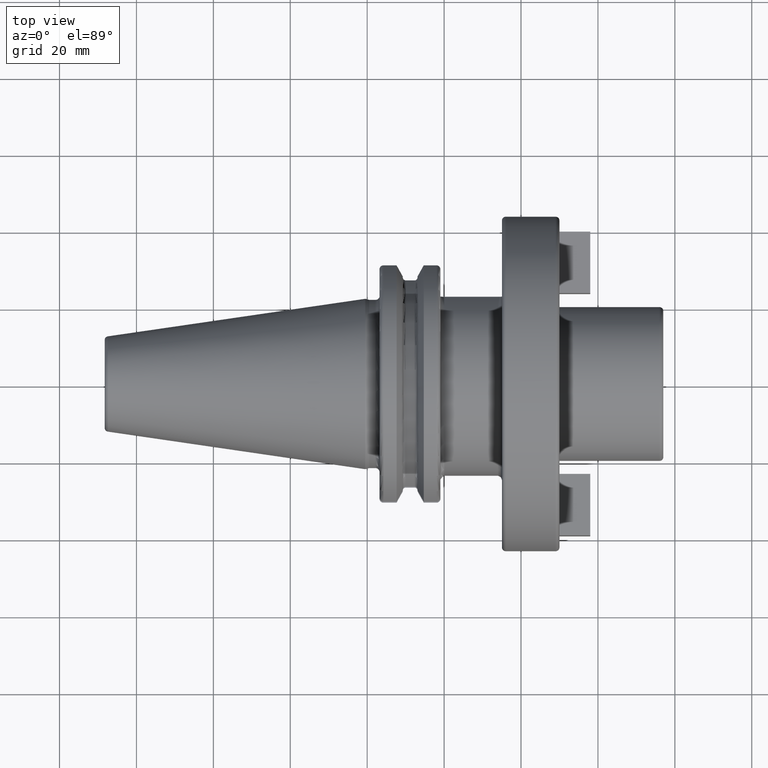
[diagram: clean part render]
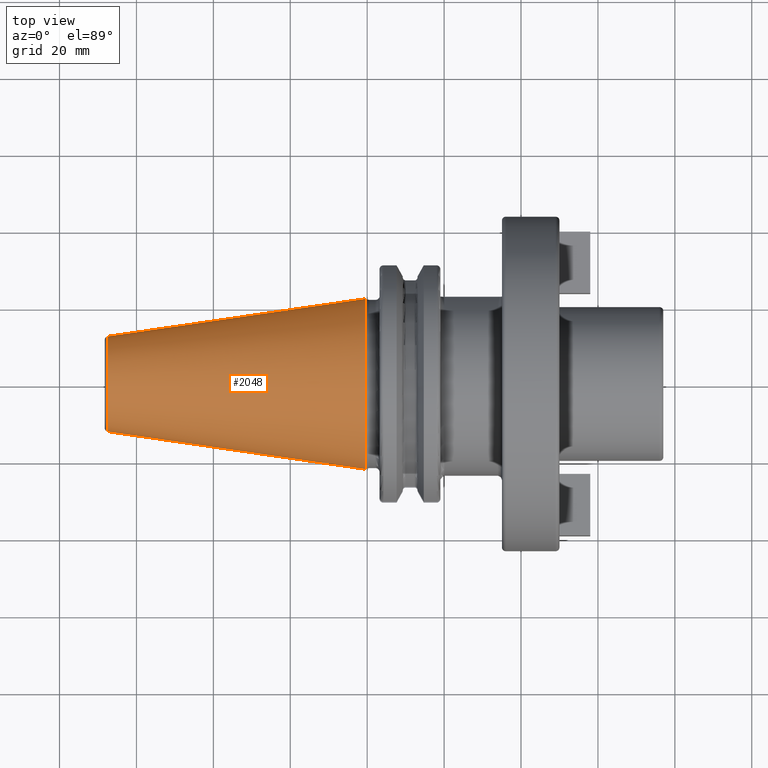
[diagram: same view with one face highlighted and labeled with its STEP entity id]
A machine part, top view. The second image highlights one B-rep face of the part: STEP entity #2048.
In plain terms, the highlighted conical surface has half-angle 8.298 deg.
Its self-contained STEP definition (entity closure, byte-faithful):
#37=CARTESIAN_POINT('',(-6.743710273571E1,0.E0,0.E0));
#38=DIRECTION('',(1.E0,0.E0,0.E0));
#39=DIRECTION('',(0.E0,1.E0,0.E0));
#40=AXIS2_PLACEMENT_3D('',#37,#38,#39);
#42=CARTESIAN_POINT('',(-4.896823332305E-1,0.E0,0.E0));
#43=DIRECTION('',(1.E0,0.E0,0.E0));
#44=DIRECTION('',(0.E0,1.E0,0.E0));
#45=AXIS2_PLACEMENT_3D('',#42,#43,#44);
#47=DIRECTION('',(-9.895312636440E-1,-1.443186691705E-1,0.E0));
#48=VECTOR('',#47,6.765568998391E1);
#49=CARTESIAN_POINT('',(-4.896823332305E-1,2.215358204157E1,0.E0));
#50=LINE('',#49,#48);
#51=DIRECTION('',(-9.895312636440E-1,1.443186691705E-1,0.E0));
#52=VECTOR('',#51,6.765568998391E1);
#53=CARTESIAN_POINT('',(-4.896823332305E-1,-2.215358204157E1,0.E0));
#54=LINE('',#53,#52);
#1632=CARTESIAN_POINT('',(-6.743710273571E1,1.238960290128E1,0.E0));
#1634=VERTEX_POINT('',#1632);
#1636=CARTESIAN_POINT('',(-6.743710273571E1,-1.238960290128E1,0.E0));
#1638=VERTEX_POINT('',#1636);
#1700=CARTESIAN_POINT('',(-4.896823332305E-1,2.215358204157E1,0.E0));
#1701=VERTEX_POINT('',#1700);
#1702=CARTESIAN_POINT('',(-4.896823332305E-1,-2.215358204157E1,0.E0));
#1703=VERTEX_POINT('',#1702);
#2034=CARTESIAN_POINT('',(-3.396339253447E1,0.E0,0.E0));
#2035=DIRECTION('',(1.E0,0.E0,0.E0));
#2036=DIRECTION('',(0.E0,-1.E0,0.E0));
#2037=AXIS2_PLACEMENT_3D('',#2034,#2035,#2036);
#2038=CONICAL_SURFACE('',#2037,1.727159247143E1,8.297826828206E0);
#2040=ORIENTED_EDGE('',*,*,#2039,.F.);
#2042=ORIENTED_EDGE('',*,*,#2041,.T.);
#2044=ORIENTED_EDGE('',*,*,#2043,.T.);
#2045=ORIENTED_EDGE('',*,*,#2027,.F.);
#2046=EDGE_LOOP('',(#2040,#2042,#2044,#2045));
#2047=FACE_OUTER_BOUND('',#2046,.F.);
#2048=ADVANCED_FACE('',(#2047),#2038,.T.);
#41=CIRCLE('',#40,1.238960290128E1);
#46=CIRCLE('',#45,2.215358204157E1);
#2027=EDGE_CURVE('',#1634,#1638,#41,.T.);
#2039=EDGE_CURVE('',#1701,#1634,#50,.T.);
#2041=EDGE_CURVE('',#1701,#1703,#46,.T.);
#2043=EDGE_CURVE('',#1703,#1638,#54,.T.);